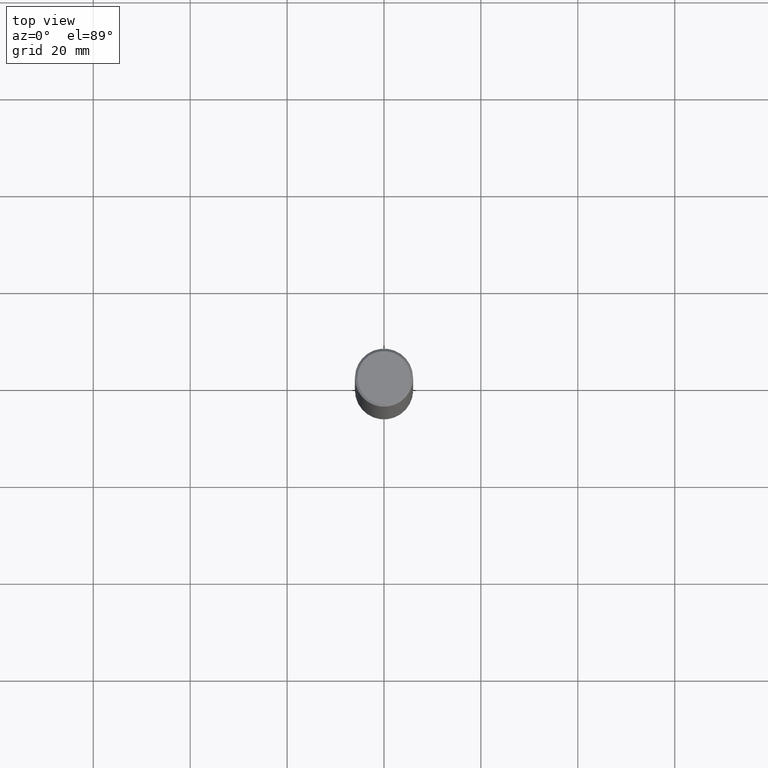
[diagram: clean part render]
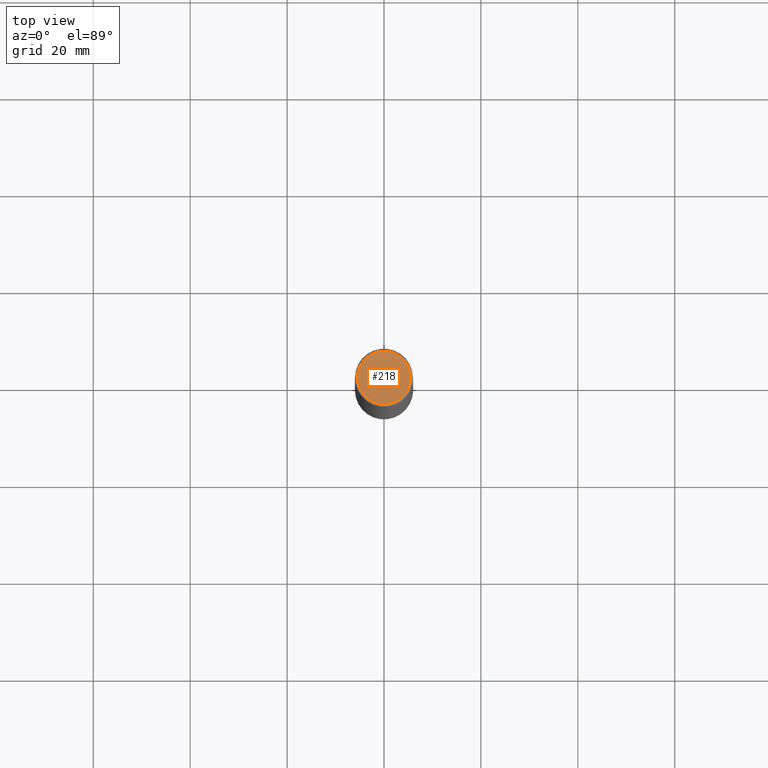
[diagram: same view with one face highlighted and labeled with its STEP entity id]
A machine part, top view. The second image highlights one B-rep face of the part: STEP entity #218.
In plain terms, the highlighted planar face has unit normal (0, -0, -1).
Its self-contained STEP definition (entity closure, byte-faithful):
#27 = DIRECTION ( 'NONE',  ( 2.438088387897960049E-29, -3.491481338843145188E-15, -1.000000000000000000 ) ) ;
#32 = AXIS2_PLACEMENT_3D ( 'NONE', #173, #271, #219 ) ;
#47 = AXIS2_PLACEMENT_3D ( 'NONE', #352, #177, #202 ) ;
#57 = CARTESIAN_POINT ( 'NONE',  ( 1.509716530915768746E-15, 0.2161999999999997257, -7.527240092128370190E-16 ) ) ;
#94 = CIRCLE ( 'NONE', #32, 0.2161999999999997257 ) ;
#121 = CARTESIAN_POINT ( 'NONE',  ( 0.2161999999999997257, -1.586759460484350213E-15, 4.268512490111238857E-18 ) ) ;
#126 = VERTEX_POINT ( 'NONE', #195 ) ;
#131 = ORIENTED_EDGE ( 'NONE', *, *, #258, .T. ) ;
#170 = EDGE_CURVE ( 'NONE', #126, #241, #94, .T. ) ;
#173 = CARTESIAN_POINT ( 'NONE',  ( -1.043851414335219820E-46, 1.490343170380447200E-32, 4.268512490100411279E-18 ) ) ;
#174 = CIRCLE ( 'NONE', #47, 0.2161999999999997257 ) ;
#177 = DIRECTION ( 'NONE',  ( -2.445468806185136597E-29, 3.491481338843145583E-15, 1.000000000000000000 ) ) ;
#195 = CARTESIAN_POINT ( 'NONE',  ( -0.2161999999999997257, 1.544631344304200197E-15, 4.268512490089730842E-18 ) ) ;
#202 = DIRECTION ( 'NONE',  ( 1.000000000000000000, -6.982962677686267499E-15, 4.876217060660161841E-29 ) ) ;
#218 = ADVANCED_FACE ( 'NONE', ( #335 ), #308, .F. ) ;
#219 = DIRECTION ( 'NONE',  ( 1.000000000000000000, -6.982962677686267499E-15, 4.876217060660161841E-29 ) ) ;
#241 = VERTEX_POINT ( 'NONE', #121 ) ;
#242 = ORIENTED_EDGE ( 'NONE', *, *, #170, .T. ) ;
#250 = DIRECTION ( 'NONE',  ( -1.000000000000000000, 6.982962677686265922E-15, -4.876176775795935793E-29 ) ) ;
#258 = EDGE_CURVE ( 'NONE', #241, #126, #174, .T. ) ;
#271 = DIRECTION ( 'NONE',  ( -2.445468806185136597E-29, 3.491481338843145583E-15, 1.000000000000000000 ) ) ;
#308 = PLANE ( 'NONE',  #324 ) ;
#324 = AXIS2_PLACEMENT_3D ( 'NONE', #57, #27, #250 ) ;
#335 = FACE_OUTER_BOUND ( 'NONE', #357, .T. ) ;
#352 = CARTESIAN_POINT ( 'NONE',  ( -1.043851414335219820E-46, 1.490343170380447200E-32, 4.268512490100411279E-18 ) ) ;
#357 = EDGE_LOOP ( 'NONE', ( #242, #131 ) ) ;